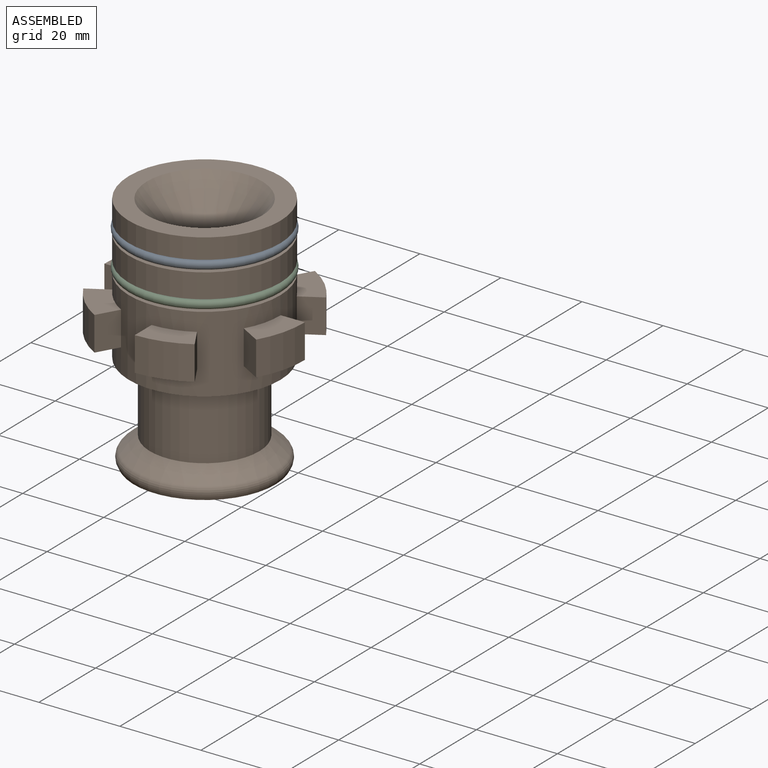
[diagram: assembled view]
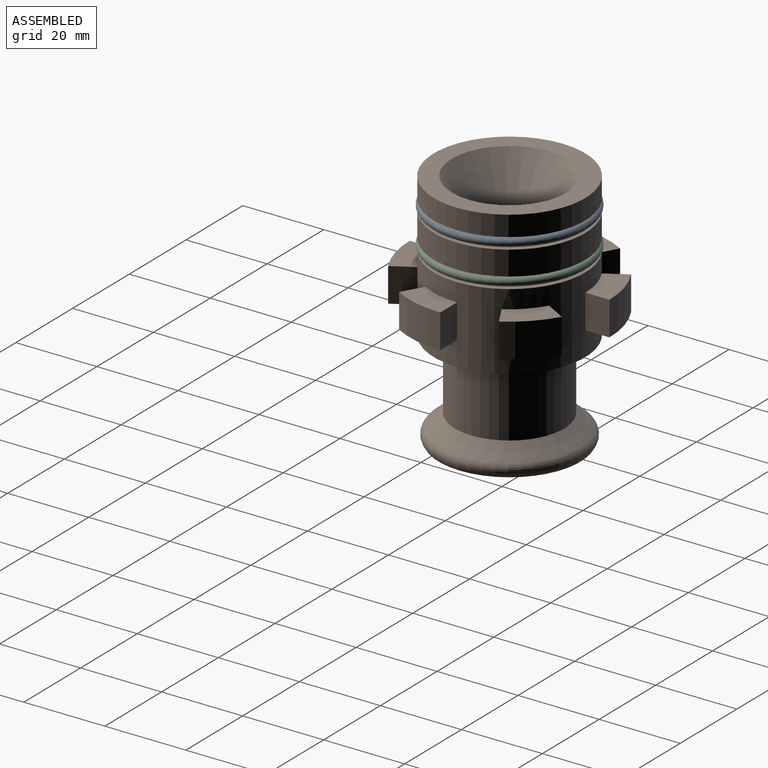
[diagram: assembled view, second angle]
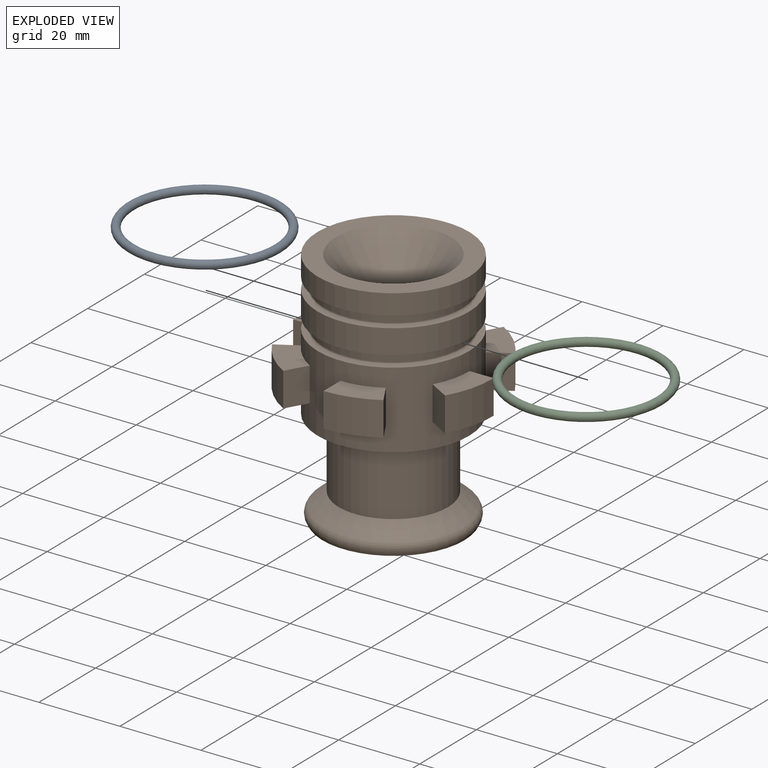
[diagram: exploded view]
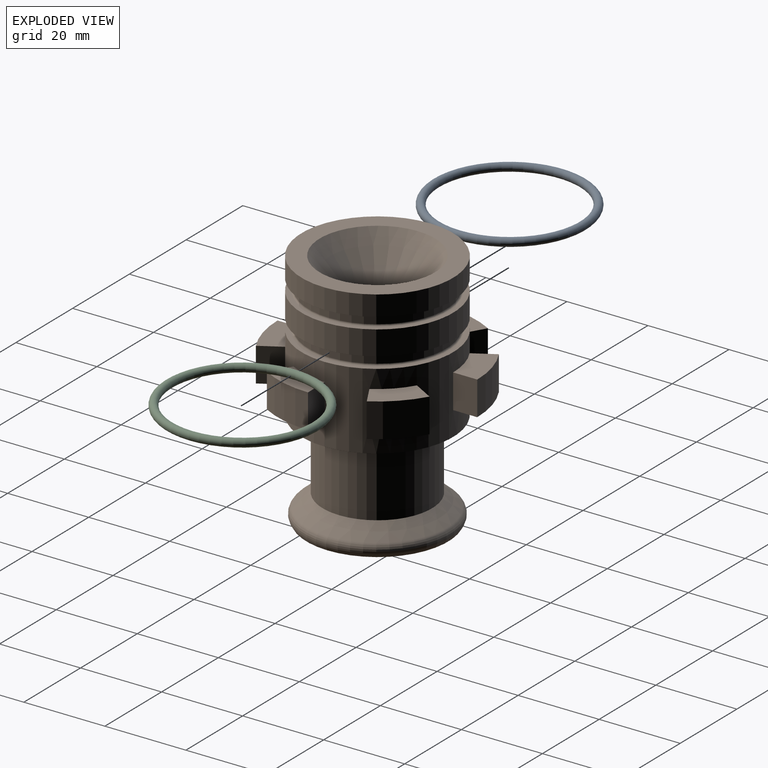
[diagram: exploded view, second angle]
ASSEMBLY  parts=3 mates=2
PART A: 1 faces, bbox 41.1x41.1x2 mm
  f0: torus R=18mm, axis (0,0,1), area 710.6mm2
PART B: 55 faces, bbox 49.3x49.3x59.1 mm
  f0: cylinder r=24.65mm len=9.14mm, axis (0,0,1), area 109.5mm2, adj f1,f2,f44,f54
  f1: plane 12.08x12.06mm, normal (0,0,1), area 68.2mm2, adj f0,f34,f44,f54
  f2: plane 12.08x12.06mm, normal (0,0,-1), area 68.2mm2, adj f0,f34,f44,f54
  f3: cylinder r=24.65mm len=12.46mm, axis (0,0,1), area 109.5mm2, adj f4,f5,f52,f53
  f4: plane 12.46x8.46mm, normal (0,0,1), area 68.2mm2, adj f3,f34,f52,f53
  f5: plane 12.46x8.46mm, normal (0,0,-1), area 68.2mm2, adj f3,f34,f52,f53
  f6: cylinder r=24.65mm len=12.44mm, axis (0,0,1), area 109.5mm2, adj f7,f8,f49,f51
  f7: plane 12.44x8.51mm, normal (0,0,1), area 68.2mm2, adj f6,f34,f49,f51
  f8: plane 12.44x8.51mm, normal (0,0,-1), area 68.2mm2, adj f6,f34,f49,f51
  f9: cylinder r=24.65mm len=9.14mm, axis (0,0,1), area 109.5mm2, adj f10,f11,f48,f50
  f10: plane 12.08x12.06mm, normal (0,0,1), area 68.2mm2, adj f9,f34,f48,f50
  f11: plane 12.08x12.06mm, normal (0,0,-1), area 68.2mm2, adj f9,f34,f48,f50
  f12: cylinder r=24.65mm len=12.46mm, axis (0,0,1), area 109.5mm2, adj f13,f14,f46,f47
  f13: plane 12.46x8.46mm, normal (0,0,1), area 68.2mm2, adj f12,f34,f46,f47
  f14: plane 12.46x8.46mm, normal (0,0,-1), area 68.2mm2, adj f12,f34,f46,f47
  f15: cylinder r=4mm len=11.26mm, axis (0,0,1), area 282.9mm2, adj f16,f42
  f16: torus R=14mm, axis (0,0,1), area 210.2mm2, adj f15,f17
  f17: cone r=14.22mm half-angle=40deg, axis (0,0,1), area 791.5mm2, adj f16,f18
  f18: plane 37.4x37.4mm, normal (0,0,1), area 463.6mm2, adj f17,f19
  f19: cylinder r=18.7mm len=37.4mm, axis (0,0,1), area 587.5mm2, adj f18,f20
  f20: plane 37.4x37.4mm, normal (0,0,-1), area 145.2mm2, adj f19,f21
  f21: torus R=17.42mm, axis (0,0,1), area 67.8mm2, adj f20,f22
  f22: cylinder r=17.02mm len=34.04mm, axis (0,0,1), area 213.9mm2, adj f21,f23
  f23: torus R=17.42mm, axis (0,0,1), area 67.8mm2, adj f22,f24
  f24: plane 37.4x37.4mm, normal (0,0,1), area 145.2mm2, adj f23,f25
  f25: cylinder r=18.7mm len=37.4mm, axis (0,0,1), area 705mm2, adj f24,f26
  f26: plane 37.4x37.4mm, normal (0,0,-1), area 145.2mm2, adj f25,f27
  f27: torus R=17.42mm, axis (0,0,1), area 67.8mm2, adj f26,f28
  f28: cylinder r=17.02mm len=34.04mm, axis (0,0,1), area 213.9mm2, adj f27,f29
  f29: torus R=17.42mm, axis (0,0,1), area 67.8mm2, adj f28,f30
  f30: plane 37.4x37.4mm, normal (0,0,1), area 145.2mm2, adj f29,f34
  f31: plane 12.44x8.51mm, normal (0,0,1), area 68.2mm2, adj f32,f34,f43,f45
  f32: cylinder r=24.65mm len=12.44mm, axis (0,0,1), area 109.5mm2, adj f31,f33,f43,f45
  f33: plane 12.44x8.51mm, normal (0,0,-1), area 68.2mm2, adj f32,f34,f43,f45
  f34: cylinder r=18.7mm len=37.4mm, axis (0,0,1), area 1722.1mm2, adj f1,f2,f4,f5,f7,f8,f10,f11
  f35: plane 37.4x37.4mm, normal (0,0,-1), area 526mm2, adj f34,f36
  f36: cylinder r=13.5mm len=27mm, axis (0,0,1), area 1467.4mm2, adj f35,f37
  f37: cone r=17.38mm half-angle=50deg, axis (0,0,-1), area 490.7mm2, adj f36,f38
  f38: torus R=16.09mm, axis (0,0,1), area 314.1mm2, adj f37,f39
  f39: cone r=17.5mm half-angle=30deg, axis (0,0,1), area 71.3mm2, adj f38,f40
  f40: plane 35x35mm, normal (0,0,-1), area 678.6mm2, adj f39,f41
  f41: cone r=4.15mm half-angle=10deg, axis (0,0,-1), area 1320.9mm2, adj f40,f42
  f42: torus R=14mm, axis (0,0,1), area 44.4mm2, adj f15,f41
  f43: plane 8.4x5.95mm, normal (1,0,0), area 50mm2, adj f31,f32,f33,f34
  f44: plane 8.4x5.17mm, normal (-0.87,0.5,0), area 50mm2, adj f0,f1,f2,f34
  f45: plane 8.4x5.14mm, normal (-0.86,-0.5,0), area 50mm2, adj f31,f32,f33,f34
  f46: plane 8.4x5.15mm, normal (0.5,0.87,0), area 50mm2, adj f12,f13,f14,f34
  f47: plane 8.4x5.95mm, normal (0.01,-1,0), area 50mm2, adj f12,f13,f14,f34
  f48: plane 8.4x5.15mm, normal (-0.5,0.87,0), area 50mm2, adj f9,f10,f11,f34
  f49: plane 8.4x5.95mm, normal (-1,0,0), area 50mm2, adj f6,f7,f8,f34
  f50: plane 8.4x5.17mm, normal (0.87,-0.5,0), area 50mm2, adj f9,f10,f11,f34
  f51: plane 8.4x5.14mm, normal (0.86,0.5,0), area 50mm2, adj f6,f7,f8,f34
  f52: plane 8.4x5.15mm, normal (-0.5,-0.87,0), area 50mm2, adj f3,f4,f5,f34
  f53: plane 8.4x5.95mm, normal (-0.01,1,0), area 50mm2, adj f3,f4,f5,f34
  f54: plane 8.4x5.15mm, normal (0.5,-0.87,0), area 50mm2, adj f0,f1,f2,f34
PART C: same geometry as A
PLACE A t=(-16.39,-9.58,22.99)mm
PLACE B t=(-16.39,-9.58,-6.11)mm fixed
PLACE C t=(-16.39,-9.58,14.19)mm
MATE cylindrical B.f0 <-> C.f0  axis (0,0,1) through (-16.39,-9.58,12.79)mm
MATE cylindrical A.f0 <-> A.f0  axis (0,0,1) through (-16.39,-9.58,22.99)mm
